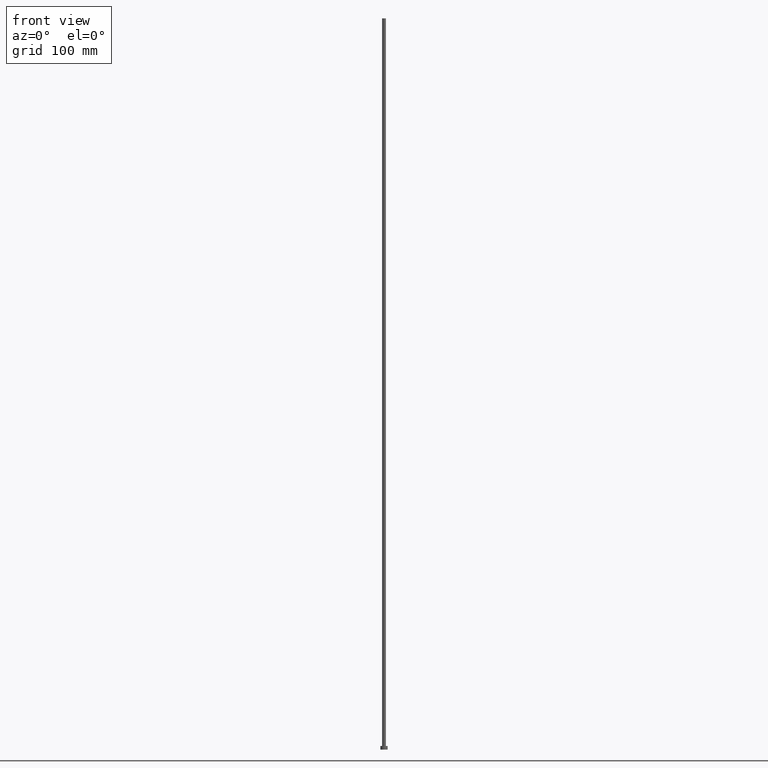
[diagram: clean part render]
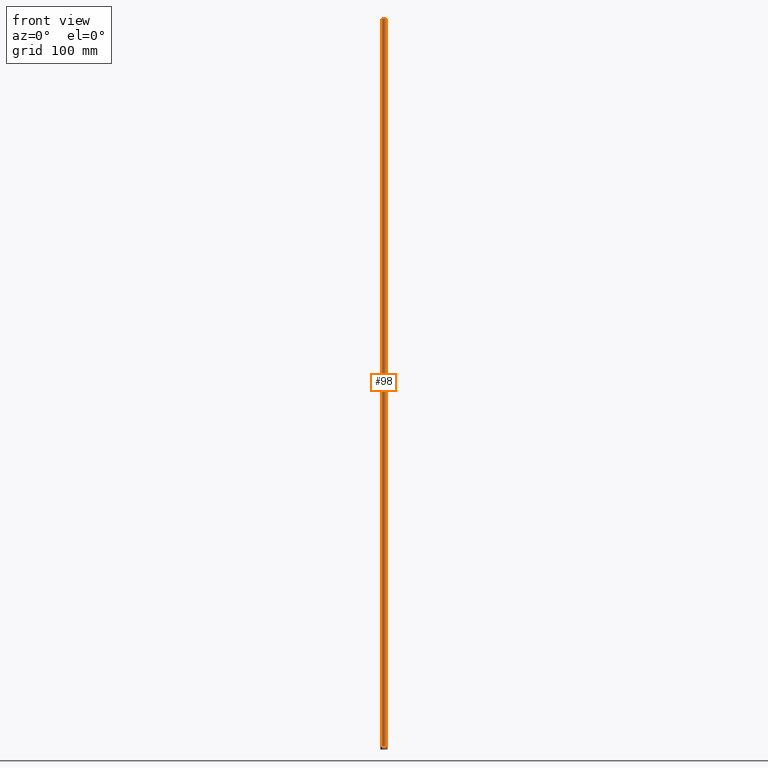
[diagram: same view with one face highlighted and labeled with its STEP entity id]
A machine part, front view. The second image highlights one B-rep face of the part: STEP entity #98.
In plain terms, the highlighted cylindrical surface (edge-blend (fillet) strip) has radius 2.1 mm, axis along (-0, -0, -1).
Its self-contained STEP definition (entity closure, byte-faithful):
#7 = DIRECTION ( 'NONE',  ( 0.000000000000000000, 0.000000000000000000, 1.000000000000000000 ) ) ;
#8 = CARTESIAN_POINT ( 'NONE',  ( 2.100000000000000089, 2.571758278209441957E-16, 800.0000000000000000 ) ) ;
#23 = EDGE_CURVE ( 'NONE', #138, #255, #112, .T. ) ;
#25 = CIRCLE ( 'NONE', #117, 2.100000000000000089 ) ;
#39 = CARTESIAN_POINT ( 'NONE',  ( 2.100000000000000089, 2.571758278209441957E-16, 800.0000000000000000 ) ) ;
#44 = DIRECTION ( 'NONE',  ( 1.000000000000000000, 0.000000000000000000, 0.000000000000000000 ) ) ;
#46 = CARTESIAN_POINT ( 'NONE',  ( -2.100000000000000089, 0.000000000000000000, 800.0000000000000000 ) ) ;
#48 = VERTEX_POINT ( 'NONE', #124 ) ;
#56 = AXIS2_PLACEMENT_3D ( 'NONE', #83, #7, #44 ) ;
#57 = EDGE_CURVE ( 'NONE', #177, #48, #150, .T. ) ;
#59 = AXIS2_PLACEMENT_3D ( 'NONE', #205, #110, #65 ) ;
#65 = DIRECTION ( 'NONE',  ( -1.000000000000000000, 0.000000000000000000, 0.000000000000000000 ) ) ;
#73 = CARTESIAN_POINT ( 'NONE',  ( 2.100000000000000089, 2.571758278209441957E-16, 4.000000000000000000 ) ) ;
#83 = CARTESIAN_POINT ( 'NONE',  ( 0.000000000000000000, 0.000000000000000000, 4.000000000000000000 ) ) ;
#93 = DIRECTION ( 'NONE',  ( 0.000000000000000000, 0.000000000000000000, 1.000000000000000000 ) ) ;
#98 = ADVANCED_FACE ( 'NONE', ( #242 ), #164, .T. ) ;
#110 = DIRECTION ( 'NONE',  ( -0.000000000000000000, -0.000000000000000000, -1.000000000000000000 ) ) ;
#112 = LINE ( 'NONE', #8, #132 ) ;
#117 = AXIS2_PLACEMENT_3D ( 'NONE', #212, #93, #172 ) ;
#119 = ORIENTED_EDGE ( 'NONE', *, *, #227, .F. ) ;
#124 = CARTESIAN_POINT ( 'NONE',  ( -2.100000000000000089, 0.000000000000000000, 4.000000000000000000 ) ) ;
#126 = DIRECTION ( 'NONE',  ( -0.000000000000000000, -0.000000000000000000, -1.000000000000000000 ) ) ;
#132 = VECTOR ( 'NONE', #126, 1000.000000000000000 ) ;
#138 = VERTEX_POINT ( 'NONE', #39 ) ;
#141 = ORIENTED_EDGE ( 'NONE', *, *, #23, .F. ) ;
#143 = VECTOR ( 'NONE', #204, 1000.000000000000000 ) ;
#147 = EDGE_CURVE ( 'NONE', #48, #255, #169, .T. ) ;
#149 = CARTESIAN_POINT ( 'NONE',  ( -2.100000000000000089, 0.000000000000000000, 800.0000000000000000 ) ) ;
#150 = LINE ( 'NONE', #149, #143 ) ;
#158 = ORIENTED_EDGE ( 'NONE', *, *, #57, .T. ) ;
#164 = CYLINDRICAL_SURFACE ( 'NONE', #59, 2.100000000000000089 ) ;
#169 = CIRCLE ( 'NONE', #56, 2.100000000000000089 ) ;
#172 = DIRECTION ( 'NONE',  ( 1.000000000000000000, 0.000000000000000000, 0.000000000000000000 ) ) ;
#177 = VERTEX_POINT ( 'NONE', #46 ) ;
#204 = DIRECTION ( 'NONE',  ( -0.000000000000000000, -0.000000000000000000, -1.000000000000000000 ) ) ;
#205 = CARTESIAN_POINT ( 'NONE',  ( 0.000000000000000000, 0.000000000000000000, 800.0000000000000000 ) ) ;
#209 = EDGE_LOOP ( 'NONE', ( #141, #119, #158, #219 ) ) ;
#212 = CARTESIAN_POINT ( 'NONE',  ( 0.000000000000000000, 0.000000000000000000, 800.0000000000000000 ) ) ;
#219 = ORIENTED_EDGE ( 'NONE', *, *, #147, .T. ) ;
#227 = EDGE_CURVE ( 'NONE', #177, #138, #25, .T. ) ;
#242 = FACE_OUTER_BOUND ( 'NONE', #209, .T. ) ;
#255 = VERTEX_POINT ( 'NONE', #73 ) ;